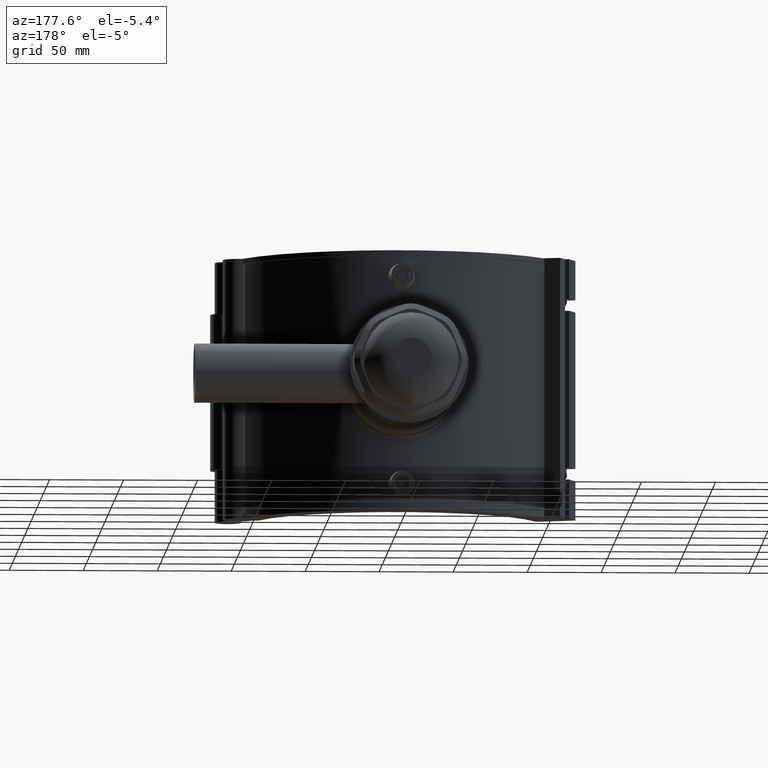
[diagram: clean part render]
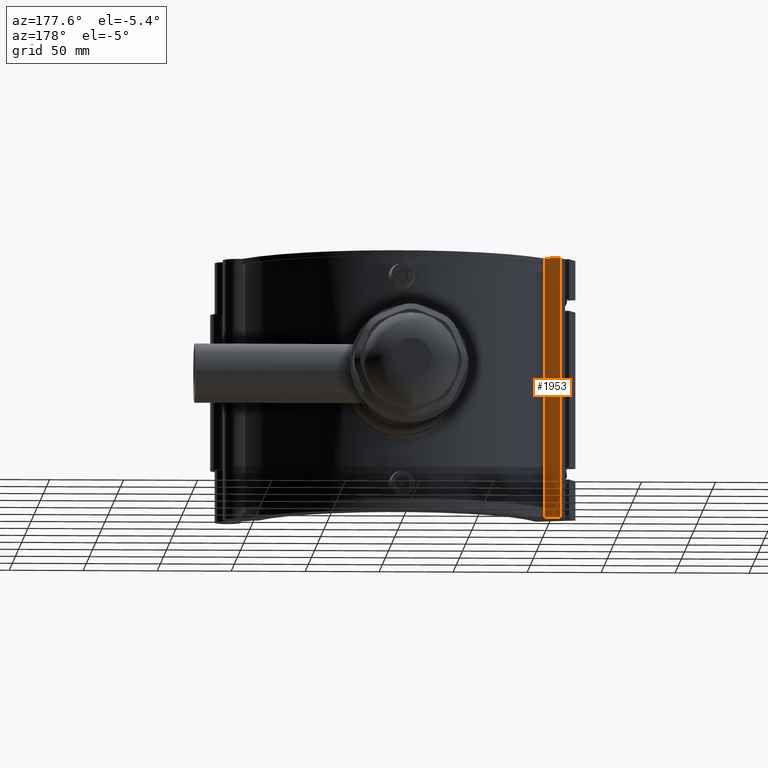
[diagram: same view with one face highlighted and labeled with its STEP entity id]
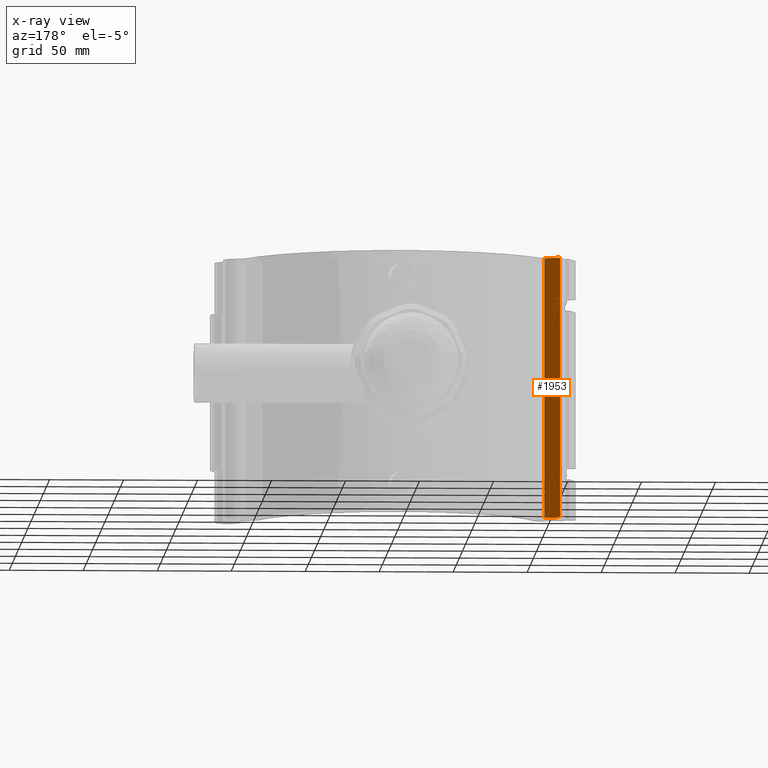
[diagram: x-ray of the same camera — body ghosted, the highlighted face saturated]
A machine part, auxiliary view. The second image highlights one B-rep face of the part: STEP entity #1953.
The next image is the same camera in x-ray: the body ghosted, the highlighted face saturated — about 0% of this face is hidden behind the body in this view.
In plain terms, the highlighted planar face has unit normal (0.342, 0.9397, 0).
Its self-contained STEP definition (entity closure, byte-faithful):
#169=LINE('',#3555,#330);
#176=LINE('',#3569,#337);
#178=LINE('',#3572,#339);
#179=LINE('',#3573,#340);
#330=VECTOR('',#2628,176.);
#337=VECTOR('',#2641,176.);
#339=VECTOR('',#2645,11.2);
#340=VECTOR('',#2646,11.2);
#532=FACE_OUTER_BOUND('',#674,.T.);
#674=EDGE_LOOP('',(#1647,#1648,#1649,#1650));
#964=VERTEX_POINT('',#3552);
#965=VERTEX_POINT('',#3554);
#968=VERTEX_POINT('',#3566);
#969=VERTEX_POINT('',#3568);
#1205=EDGE_CURVE('',#964,#965,#169,.T.);
#1212=EDGE_CURVE('',#969,#968,#176,.T.);
#1214=EDGE_CURVE('',#968,#965,#178,.T.);
#1215=EDGE_CURVE('',#969,#964,#179,.T.);
#1647=ORIENTED_EDGE('',*,*,#1214,.T.);
#1648=ORIENTED_EDGE('',*,*,#1205,.F.);
#1649=ORIENTED_EDGE('',*,*,#1215,.F.);
#1650=ORIENTED_EDGE('',*,*,#1212,.T.);
#1853=PLANE('',#2143);
#1953=ADVANCED_FACE('',(#532),#1853,.T.);
#2143=AXIS2_PLACEMENT_3D('',#3571,#2643,#2644);
#2628=DIRECTION('',(0.,0.,1.));
#2641=DIRECTION('',(0.,0.,1.));
#2643=DIRECTION('center_axis',(0.342020143325667,0.939692620785909,0.));
#2644=DIRECTION('ref_axis',(-0.939692620785909,0.342020143325668,0.));
#2645=DIRECTION('',(0.939692620785909,-0.342020143325667,0.));
#2646=DIRECTION('',(0.939692620785909,-0.342020143325667,0.));
#3552=CARTESIAN_POINT('',(-98.5060511577865,62.6705503829311,-88.));
#3554=CARTESIAN_POINT('',(-98.5060511577865,62.6705503829311,88.));
#3555=CARTESIAN_POINT('',(-98.5060511577865,62.6705503829311,-88.));
#3566=CARTESIAN_POINT('',(-109.030608510589,66.5011759881785,88.));
#3568=CARTESIAN_POINT('',(-109.030608510589,66.5011759881785,-88.));
#3569=CARTESIAN_POINT('',(-109.030608510589,66.5011759881785,-88.));
#3571=CARTESIAN_POINT('Origin',(-98.5060511577865,62.6705503829311,-88.));
#3572=CARTESIAN_POINT('',(-99.2747368321261,62.9503290878975,88.));
#3573=CARTESIAN_POINT('',(-109.030608510589,66.5011759881785,-88.));